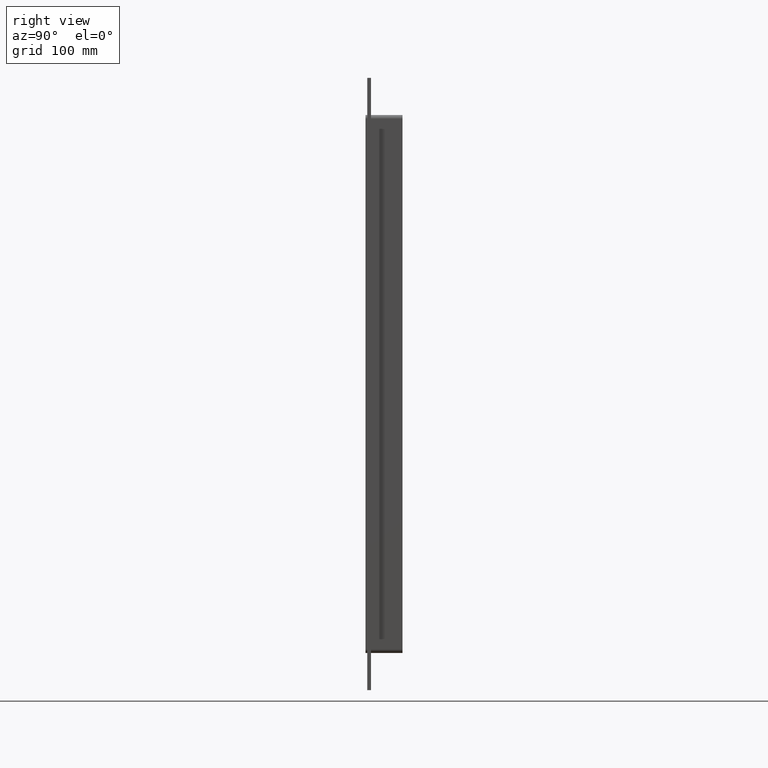
[diagram: clean part render]
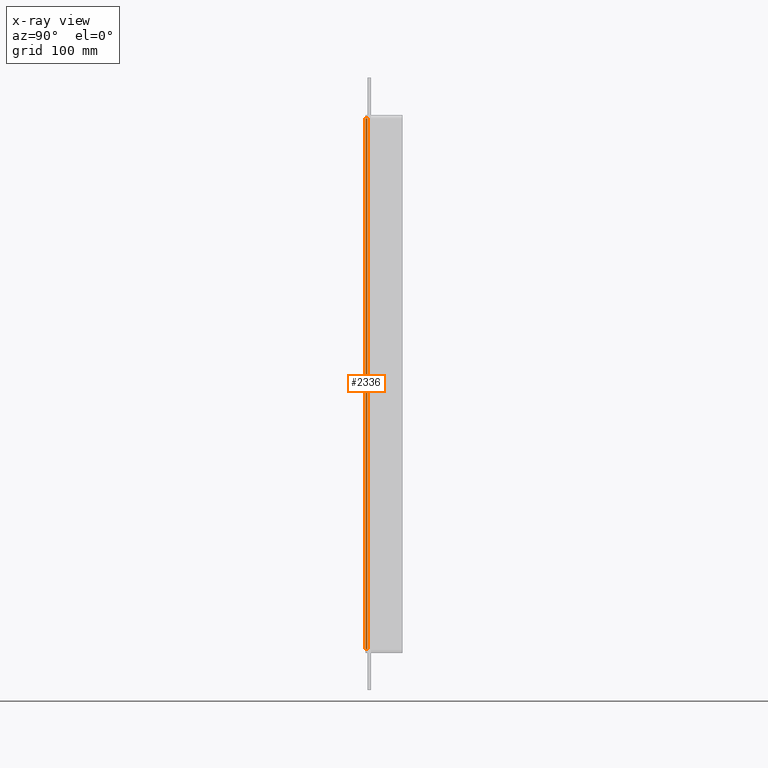
[diagram: x-ray — body ghosted, one internal face saturated and labeled with its STEP entity id]
A machine part, right view, then the same camera in x-ray: the body is ghosted and one INTERNAL B-rep face — a face not visible from any outside direction — is saturated and labeled: STEP entity #2336.
In plain terms, the highlighted planar face has unit normal (-1, 0, 0).
Its self-contained STEP definition (entity closure, byte-faithful):
#1366=CARTESIAN_POINT('',(-262.0,-3.0,429.00000000000006));
#1367=VERTEX_POINT('',#1366);
#1375=CARTESIAN_POINT('',(-262.0,-3.0,-429.00000000000006));
#1376=VERTEX_POINT('',#1375);
#1377=CARTESIAN_POINT('',(-262.0,-3.0,429.0));
#1378=DIRECTION('',(0.0,0.0,-1.0));
#1379=VECTOR('',#1378,858.0);
#1380=LINE('',#1377,#1379);
#1381=EDGE_CURVE('',#1367,#1376,#1380,.T.);
#1989=CARTESIAN_POINT('',(-262.0,0.0,-429.00000000000006));
#1990=VERTEX_POINT('',#1989);
#2000=CARTESIAN_POINT('',(-262.0,0.0,429.00000000000006));
#2001=VERTEX_POINT('',#2000);
#2002=CARTESIAN_POINT('',(-262.0,0.0,429.0));
#2003=DIRECTION('',(0.0,0.0,-1.0));
#2004=VECTOR('',#2003,858.0);
#2005=LINE('',#2002,#2004);
#2006=EDGE_CURVE('',#2001,#1990,#2005,.T.);
#2275=CARTESIAN_POINT('',(-262.0,0.0,429.00000000000006));
#2276=DIRECTION('',(0.0,-1.0,0.0));
#2277=VECTOR('',#2276,3.0);
#2278=LINE('',#2275,#2277);
#2279=EDGE_CURVE('',#2001,#1367,#2278,.T.);
#2320=CARTESIAN_POINT('',(-262.0,0.0,-435.0));
#2321=DIRECTION('',(-1.0,0.0,0.0));
#2322=DIRECTION('',(0.0,0.0,1.0));
#2323=AXIS2_PLACEMENT_3D('',#2320,#2321,#2322);
#2324=PLANE('',#2323);
#2325=ORIENTED_EDGE('',*,*,#2006,.T.);
#2326=CARTESIAN_POINT('',(-262.0,-3.0,-429.00000000000006));
#2327=DIRECTION('',(0.0,1.0,0.0));
#2328=VECTOR('',#2327,3.0);
#2329=LINE('',#2326,#2328);
#2330=EDGE_CURVE('',#1376,#1990,#2329,.T.);
#2331=ORIENTED_EDGE('',*,*,#2330,.F.);
#2332=ORIENTED_EDGE('',*,*,#1381,.F.);
#2333=ORIENTED_EDGE('',*,*,#2279,.F.);
#2334=EDGE_LOOP('',(#2325,#2331,#2332,#2333));
#2335=FACE_OUTER_BOUND('',#2334,.T.);
#2336=ADVANCED_FACE('',(#2335),#2324,.T.);